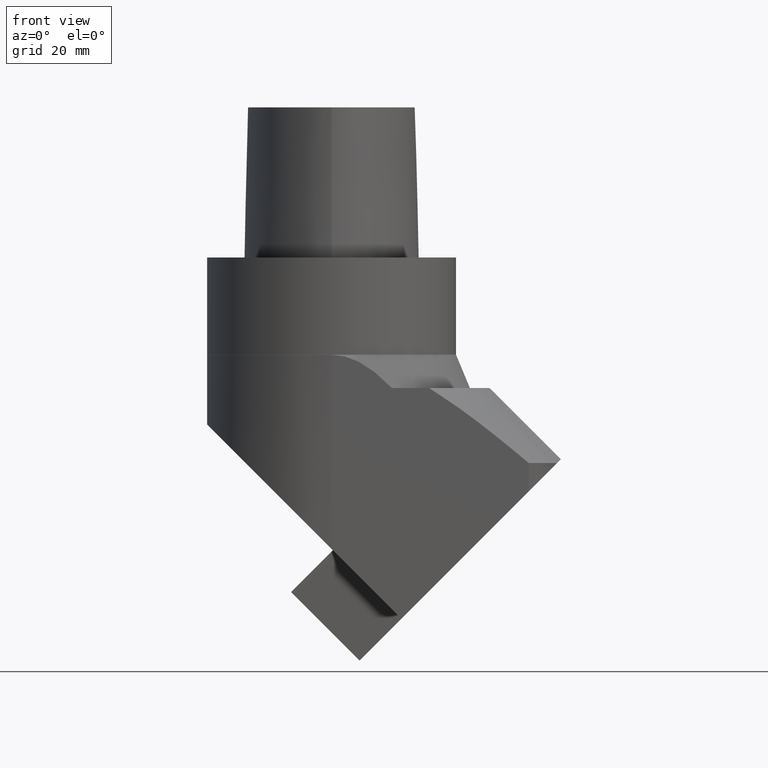
[diagram: clean part render]
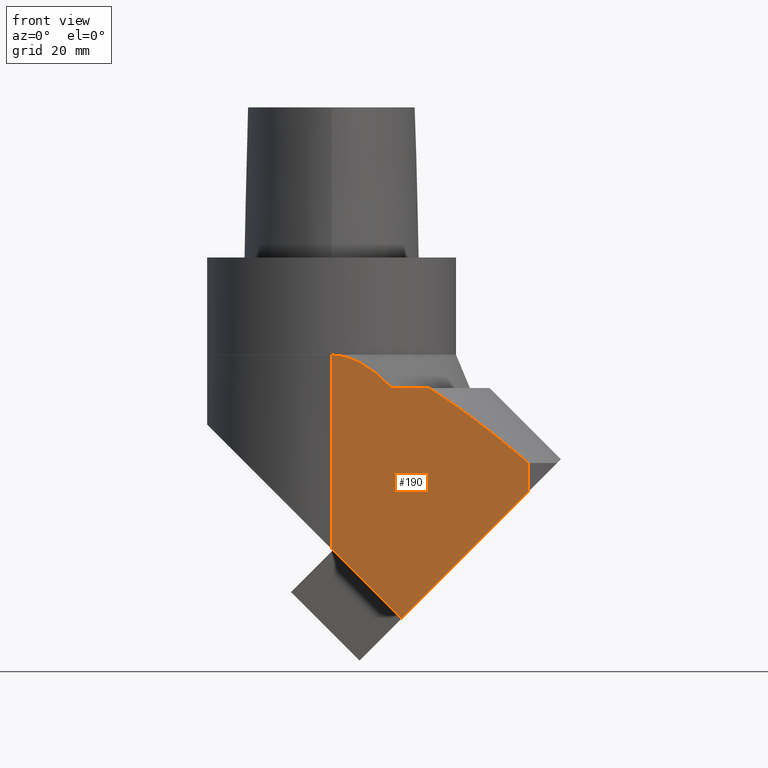
[diagram: same view with one face highlighted and labeled with its STEP entity id]
A machine part, front view. The second image highlights one B-rep face of the part: STEP entity #190.
In plain terms, the highlighted planar face has unit normal (-0, -1, 0).
Its self-contained STEP definition (entity closure, byte-faithful):
#124=EDGE_CURVE('240[2]',#346,#347,#348,.T.);
#138=EDGE_CURVE('240[2]',#350,#366,#367,.T.);
#190=ADVANCED_FACE('240[2]',(#443),#444,.T.);
#225=EDGE_CURVE('240[2]',#423,#457,#491,.T.);
#236=EDGE_CURVE('240[2]',#423,#350,#504,.F.);
#245=EDGE_CURVE('240[2]',#457,#516,#517,.T.);
#255=EDGE_CURVE('240[2]',#529,#347,#530,.T.);
#271=EDGE_CURVE('240[2]',#516,#529,#549,.T.);
#276=EDGE_CURVE('240[2]',#346,#555,#556,.T.);
#284=EDGE_CURVE('240[2]',#555,#366,#565,.T.);
#346=VERTEX_POINT('',#710);
#347=VERTEX_POINT('',#711);
#348=LINE('',#712,#713);
#350=VERTEX_POINT('',#716);
#366=VERTEX_POINT('',#753);
#367=LINE('',#754,#755);
#423=VERTEX_POINT('',#931);
#443=FACE_OUTER_BOUND('',#960,.T.);
#444=PLANE('',#961);
#457=VERTEX_POINT('',#983);
#491=LINE('',#1028,#1029);
#504=(B_SPLINE_CURVE(2,(#1058,#1059,#1060),.UNSPECIFIED.,.F.,.F.)B_SPLINE_CURVE_WITH_KNOTS((3,3),(1006.50744756688,1255.70824626694),.UNSPECIFIED.)RATIONAL_B_SPLINE_CURVE((7.0712147523417,7.07121475234199,6.69904551762493))BOUNDED_CURVE()REPRESENTATION_ITEM('')GEOMETRIC_REPRESENTATION_ITEM()CURVE());
#516=VERTEX_POINT('',#1094);
#517=(B_SPLINE_CURVE(2,(#1096,#1097,#1098),.UNSPECIFIED.,.F.,.F.)B_SPLINE_CURVE_WITH_KNOTS((3,3),(1469.39773661616,1634.30696098478),.UNSPECIFIED.)RATIONAL_B_SPLINE_CURVE((11.3560907714777,10.7051554606095,9.77767348147329))BOUNDED_CURVE()REPRESENTATION_ITEM('')GEOMETRIC_REPRESENTATION_ITEM()CURVE());
#529=VERTEX_POINT('',#1135);
#530=(B_SPLINE_CURVE(2,(#1137,#1138,#1139),.UNSPECIFIED.,.F.,.F.)B_SPLINE_CURVE_WITH_KNOTS((3,3),(970.486333217665,1001.73575471),.UNSPECIFIED.)RATIONAL_B_SPLINE_CURVE((5.58289391319489,5.39208445089301,5.1842352977651))BOUNDED_CURVE()REPRESENTATION_ITEM('')GEOMETRIC_REPRESENTATION_ITEM()CURVE());
#549=(B_SPLINE_CURVE(2,(#1182,#1183,#1184),.UNSPECIFIED.,.F.,.F.)B_SPLINE_CURVE_WITH_KNOTS((3,3),(2100.65765670613,2150.76210232924),.UNSPECIFIED.)RATIONAL_B_SPLINE_CURVE((12.4400586247719,12.1594705874613,11.8589891565199))BOUNDED_CURVE()REPRESENTATION_ITEM('')GEOMETRIC_REPRESENTATION_ITEM()CURVE());
#555=VERTEX_POINT('',#1198);
#556=LINE('',#1199,#1200);
#565=LINE('',#1223,#1224);
#710=CARTESIAN_POINT('',(49.8873731519312,-31.5,-59.1838481636827));
#711=CARTESIAN_POINT('',(49.8873731519312,-31.5,-52.0000003175876));
#712=CARTESIAN_POINT('',(49.8873731519312,-31.5,-57.9962756050882));
#713=VECTOR('',#1302,1.0);
#716=CARTESIAN_POINT('',(2.79900494301447E-013,-31.5,-24.5999994242329));
#753=CARTESIAN_POINT('',(2.82751199430797E-013,-31.5,-73.715882256286));
#754=CARTESIAN_POINT('',(2.10756235178243E-013,-31.5,5.69999968241127));
#755=VECTOR('',#1325,100.0);
#931=CARTESIAN_POINT('',(15.2561471501424,-31.5,-33.0000003175886));
#960=EDGE_LOOP('',(#1381,#1382,#1383,#1384,#1385,#1386,#1387,#1388,#1389));
#961=AXIS2_PLACEMENT_3D('',#1390,#1391,#1392);
#983=CARTESIAN_POINT('',(24.6525860712423,-31.5,-33.0000003175886));
#1028=CARTESIAN_POINT('',(29.5000000000021,-31.5,-33.0000003175886));
#1029=VECTOR('',#1466,100.0);
#1058=CARTESIAN_POINT('',(2.79900494301447E-013,-31.5,-24.5999994242329));
#1059=CARTESIAN_POINT('',(7.22659597833194,-31.5,-24.5999994242268));
#1060=CARTESIAN_POINT('',(15.2561471501424,-31.5,-33.0000003175886));
#1094=CARTESIAN_POINT('',(40.7965518519409,-31.5,-44.5422998686177));
#1096=CARTESIAN_POINT('',(24.6525860712423,-31.5,-33.0000003175886));
#1097=CARTESIAN_POINT('',(31.7067963586732,-31.4999999999999,-37.3476134744765));
#1098=CARTESIAN_POINT('',(40.7965518519409,-31.5,-44.5422998686177));
#1135=CARTESIAN_POINT('',(45.8296668694695,-31.5,-48.6112254917064));
#1137=CARTESIAN_POINT('',(45.8296668694695,-31.5,-48.6112254917064));
#1138=CARTESIAN_POINT('',(49.5701965644849,-31.5,-51.693826698588));
#1139=CARTESIAN_POINT('',(53.7612951628419,-31.5000000000001,-55.309926152772));
#1182=CARTESIAN_POINT('',(40.7965518519386,-31.5000000000001,-44.5422998686158));
#1183=CARTESIAN_POINT('',(43.2175484787115,-31.5000000000001,-46.4585572975208));
#1184=CARTESIAN_POINT('',(45.8296668694302,-31.5000000000001,-48.6112254916739));
#1198=CARTESIAN_POINT('',(17.677669529664,-31.5,-91.3935517859496));
#1199=CARTESIAN_POINT('',(87.0031989394718,-31.5,-22.0680223761425));
#1200=VECTOR('',#1544,100.0);
#1223=CARTESIAN_POINT('',(10.6066017177986,-31.5,-84.3224839740842));
#1224=VECTOR('',#1549,100.0);
#1302=DIRECTION('',(-0.0,0.0,1.0));
#1325=DIRECTION('',(2.28198881722218E-015,-6.12323399573681E-017,-1.0));
#1381=ORIENTED_EDGE('',*,*,#124,.T.);
#1382=ORIENTED_EDGE('',*,*,#255,.F.);
#1383=ORIENTED_EDGE('',*,*,#271,.F.);
#1384=ORIENTED_EDGE('',*,*,#245,.F.);
#1385=ORIENTED_EDGE('',*,*,#225,.F.);
#1386=ORIENTED_EDGE('',*,*,#236,.T.);
#1387=ORIENTED_EDGE('',*,*,#138,.T.);
#1388=ORIENTED_EDGE('',*,*,#284,.F.);
#1389=ORIENTED_EDGE('',*,*,#276,.F.);
#1390=CARTESIAN_POINT('',(59.2351768809182,-31.5,5.69999968241141));
#1391=DIRECTION('',(-4.64836475281445E-016,-1.0,6.1232339957367E-017));
#1392=DIRECTION('',(-1.0,4.64836475281445E-016,0.0));
#1466=DIRECTION('',(1.0,-4.64836475281445E-016,2.28198881722218E-015));
#1544=DIRECTION('',(-0.707106781186551,2.8539122100259E-016,-0.707106781186544));
#1549=DIRECTION('',(-0.707106781186552,1.73191211247099E-016,0.707106781186543));